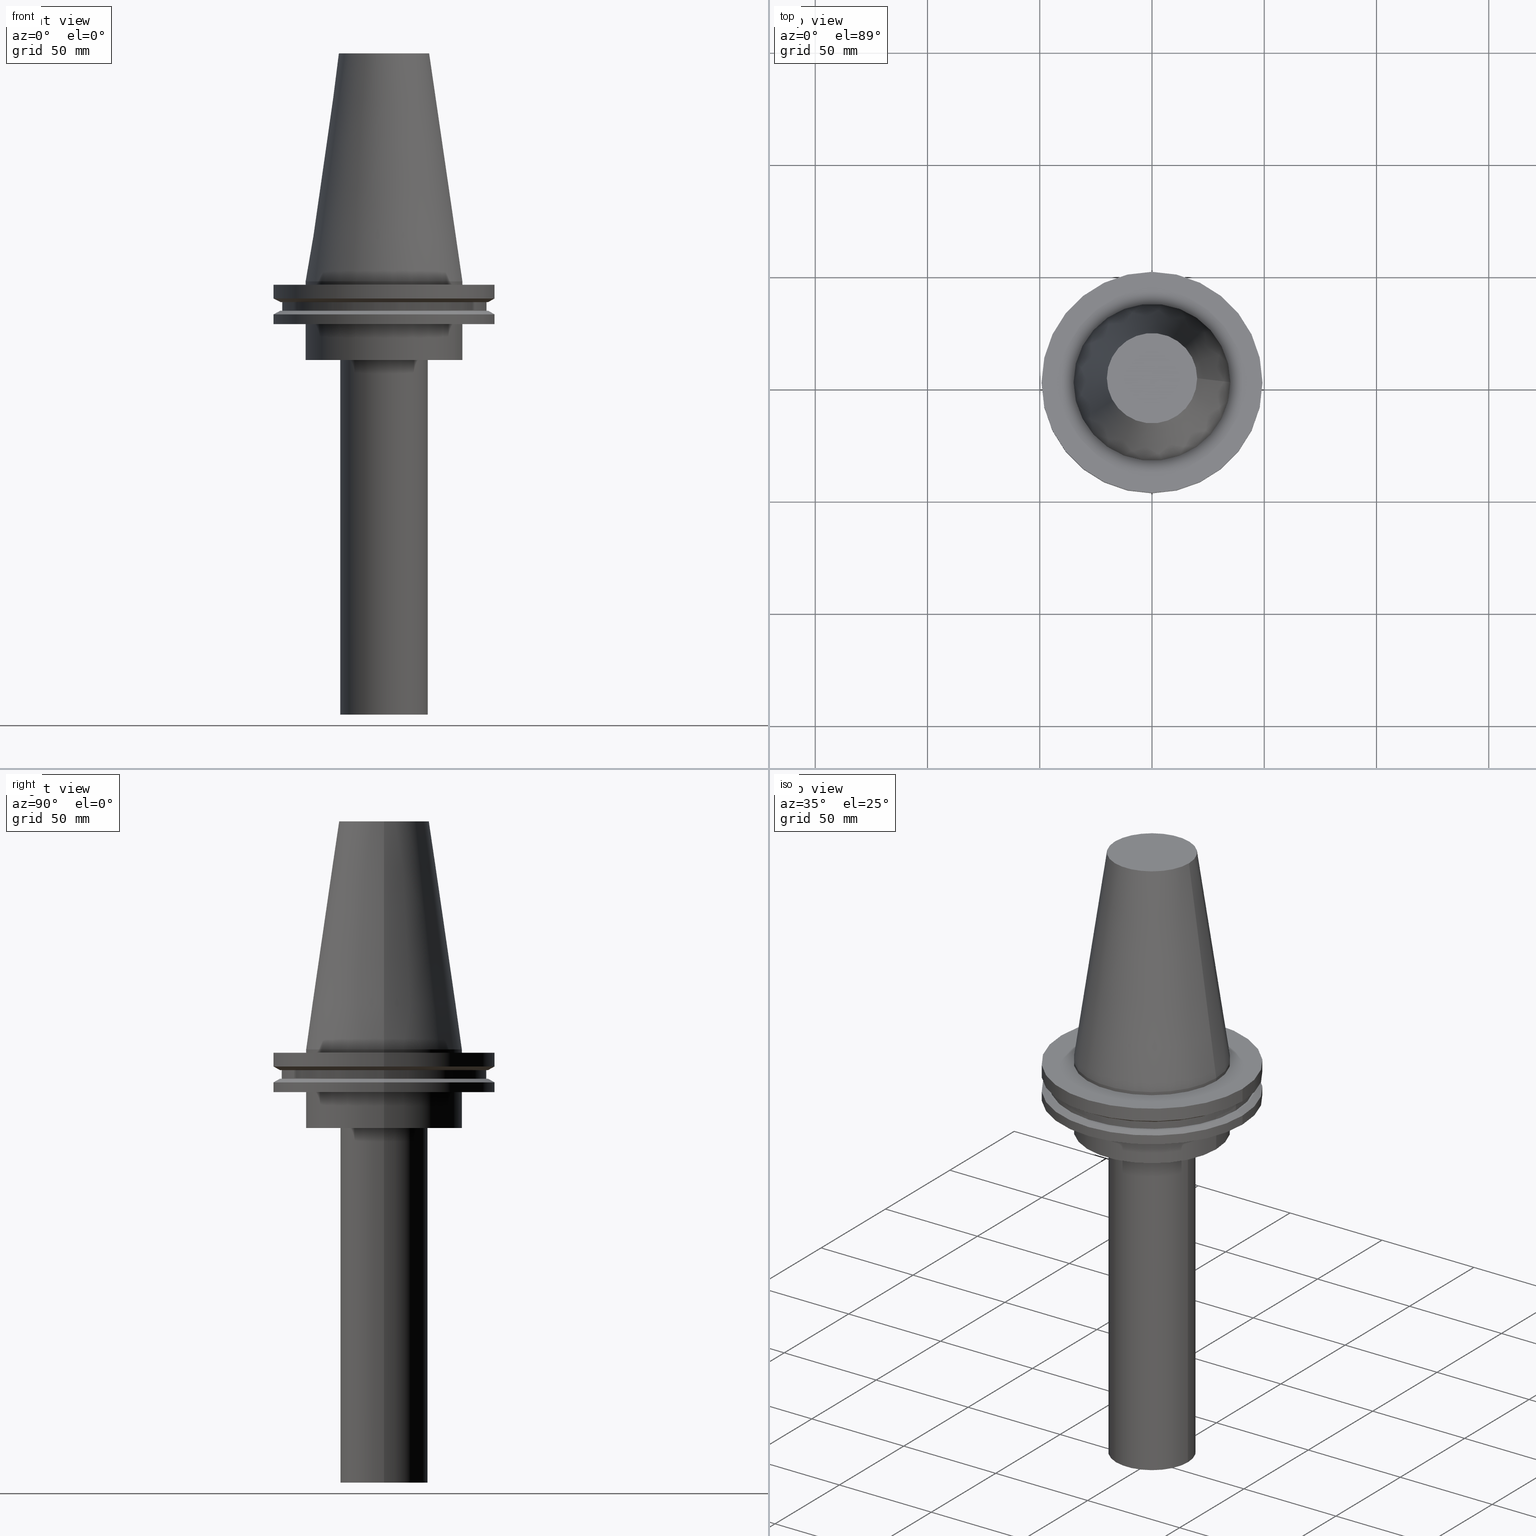
[diagram: canonical four-view strip — front | top / right | iso, engineering-drawing reading convention]
A machine part, canonical four-view strip (front | top / right | iso — engineering-drawing reading convention). The complete STEP part file that produces these views, byte-faithful:
ISO-10303-21;
HEADER;
FILE_DESCRIPTION (( 'STEP AP203' ),
    '1' );
FILE_NAME ('11.368.645.stp',
    '2022-03-09T15:20:45',
    ( '' ),
    ( '' ),
    'SwSTEP 2.0',
    'SolidWorks 2021',
    '' );
FILE_SCHEMA (( 'CONFIG_CONTROL_DESIGN' ));
ENDSEC;

DATA;
#1 = CYLINDRICAL_SURFACE ( 'NONE', #44, 49.21499999999998920 ) ;
#2 = DIRECTION ( 'NONE',  ( -0.000000000000000000, -0.000000000000000000, 1.000000000000000000 ) ) ;
#3 = EDGE_LOOP ( 'NONE', ( #315 ) ) ;
#4 = DIRECTION ( 'NONE',  ( 1.000000000000000000, 0.000000000000000000, 0.000000000000000000 ) ) ;
#5 = EDGE_LOOP ( 'NONE', ( #219 ) ) ;
#6 = DIRECTION ( 'NONE',  ( 1.000000000000000000, 0.000000000000000000, 0.000000000000000000 ) ) ;
#7 = EDGE_LOOP ( 'NONE', ( #179 ) ) ;
#8 = DIRECTION ( 'NONE',  ( 1.000000000000000000, 0.000000000000000000, 0.000000000000000000 ) ) ;
#9 = CONICAL_SURFACE ( 'NONE', #231, 46.43919780457007818, 1.047197551196575205 ) ;
#10 = ORIENTED_EDGE ( 'NONE', *, *, #215, .T. ) ;
#11 = DIRECTION ( 'NONE',  ( -1.000000000000000000, 0.000000000000000000, 0.000000000000000000 ) ) ;
#12 = AXIS2_PLACEMENT_3D ( 'NONE', #390, #301, #55 ) ;
#13 = ORIENTED_EDGE ( 'NONE', *, *, #134, .T. ) ;
#14 = CALENDAR_DATE ( 2022, 9, 3 ) ;
#15 = DIRECTION ( 'NONE',  ( -0.000000000000000000, -0.000000000000000000, 1.000000000000000000 ) ) ;
#16 = PERSON_AND_ORGANIZATION_ROLE ( 'design_owner' ) ;
#17 = PERSON_AND_ORGANIZATION ( #222, #375 ) ;
#18 = VERTEX_POINT ( 'NONE', #146 ) ;
#19 = EDGE_CURVE ( 'NONE', #177, #177, #41, .T. ) ;
#20 = APPROVAL_STATUS ( 'not_yet_approved' ) ;
#21 = AXIS2_PLACEMENT_3D ( 'NONE', #169, #287, #273 ) ;
#22 = VERTEX_POINT ( 'NONE', #291 ) ;
#23 = DIRECTION ( 'NONE',  ( 1.000000000000000000, 0.000000000000000000, 0.000000000000000000 ) ) ;
#24 = CC_DESIGN_APPROVAL ( #59, ( #302 ) ) ;
#25 = CARTESIAN_POINT ( 'NONE',  ( 0.000000000000000000, 49.21499999999999631, -1.499999999999992895 ) ) ;
#26 = CYLINDRICAL_SURFACE ( 'NONE', #338, 19.50000000000000000 ) ;
#27 = DIRECTION ( 'NONE',  ( -0.000000000000000000, -0.000000000000000000, 1.000000000000000000 ) ) ;
#28 = EDGE_CURVE ( 'NONE', #354, #354, #165, .T. ) ;
#29 = AXIS2_PLACEMENT_3D ( 'NONE', #164, #167, #11 ) ;
#30 = DIRECTION ( 'NONE',  ( -0.000000000000000000, -0.000000000000000000, 1.000000000000000000 ) ) ;
#31 = CARTESIAN_POINT ( 'NONE',  ( 0.000000000000000000, 0.000000000000000000, -1.499999999999987566 ) ) ;
#32 = CIRCLE ( 'NONE', #130, 49.21499999999998920 ) ;
#33 = CC_DESIGN_PERSON_AND_ORGANIZATION_ASSIGNMENT ( #17, #16, ( #393 ) ) ;
#34 = FACE_OUTER_BOUND ( 'NONE', #66, .T. ) ;
#35 = ORIENTED_EDGE ( 'NONE', *, *, #274, .T. ) ;
#36 = CONICAL_SURFACE ( 'NONE', #12, 49.21499999999998920, 1.047197551196554333 ) ;
#37 = EDGE_LOOP ( 'NONE', ( #193 ) ) ;
#38 = FACE_OUTER_BOUND ( 'NONE', #138, .T. ) ;
#39 = ORIENTED_EDGE ( 'NONE', *, *, #345, .F. ) ;
#40 = CARTESIAN_POINT ( 'NONE',  ( 0.000000000000000000, 0.000000000000000000, -13.05499999999999794 ) ) ;
#41 = CIRCLE ( 'NONE', #321, 46.43919780457007818 ) ;
#42 = ORIENTED_EDGE ( 'NONE', *, *, #19, .T. ) ;
#43 = CARTESIAN_POINT ( 'NONE',  ( 0.000000000000000000, 0.000000000000000000, -13.05499999999999794 ) ) ;
#44 = AXIS2_PLACEMENT_3D ( 'NONE', #240, #334, #52 ) ;
#45 = APPROVAL ( #20, 'UNSPECIFIED' ) ;
#46 = DIRECTION ( 'NONE',  ( 1.000000000000000000, 0.000000000000000000, 0.000000000000000000 ) ) ;
#47 = PERSON_AND_ORGANIZATION ( #222, #375 ) ;
#48 = CARTESIAN_POINT ( 'NONE',  ( 0.000000000000000000, 0.000000000000000000, 0.000000000000000000 ) ) ;
#49 = DIRECTION ( 'NONE',  ( -1.000000000000000000, 0.000000000000000000, -0.000000000000000000 ) ) ;
#50 = AXIS2_PLACEMENT_3D ( 'NONE', #40, #280, #6 ) ;
#51 = ADVANCED_FACE ( 'NONE', ( #380, #348 ), #255, .T. ) ;
#52 = DIRECTION ( 'NONE',  ( 1.000000000000000000, 0.000000000000000000, 0.000000000000000000 ) ) ;
#53 = CALENDAR_DATE ( 2022, 9, 3 ) ;
#54 = VERTEX_POINT ( 'NONE', #353 ) ;
#55 = DIRECTION ( 'NONE',  ( -1.000000000000000000, 0.000000000000000000, 0.000000000000000000 ) ) ;
#56 = DIRECTION ( 'NONE',  ( -0.000000000000000000, -0.000000000000000000, 1.000000000000000000 ) ) ;
#57 = AXIS2_PLACEMENT_3D ( 'NONE', #395, #30, #158 ) ;
#58 = FACE_BOUND ( 'NONE', #37, .T. ) ;
#59 = APPROVAL ( #139, 'UNSPECIFIED' ) ;
#60 = CARTESIAN_POINT ( 'NONE',  ( 0.000000000000000000, 19.50000000000000000, -193.0000000000000000 ) ) ;
#61 = DIRECTION ( 'NONE',  ( -0.000000000000000000, -0.000000000000000000, 1.000000000000000000 ) ) ;
#62 = DIRECTION ( 'NONE',  ( 1.000000000000000000, 0.000000000000000000, 0.000000000000000000 ) ) ;
#63 = AXIS2_PLACEMENT_3D ( 'NONE', #121, #233, #359 ) ;
#64 = EDGE_CURVE ( 'NONE', #202, #202, #197, .T. ) ;
#65 = AXIS2_PLACEMENT_3D ( 'NONE', #230, #292, #271 ) ;
#66 = EDGE_LOOP ( 'NONE', ( #369 ) ) ;
#67 = DIRECTION ( 'NONE',  ( 0.000000000000000000, -0.000000000000000000, 1.000000000000000000 ) ) ;
#68 = EDGE_LOOP ( 'NONE', ( #72 ) ) ;
#69 = ORIENTED_EDGE ( 'NONE', *, *, #215, .F. ) ;
#70 = DIRECTION ( 'NONE',  ( -0.000000000000000000, -0.000000000000000000, 1.000000000000000000 ) ) ;
#71 = EDGE_LOOP ( 'NONE', ( #131 ) ) ;
#72 = ORIENTED_EDGE ( 'NONE', *, *, #109, .F. ) ;
#73 = FACE_OUTER_BOUND ( 'NONE', #317, .T. ) ;
#74 = AXIS2_PLACEMENT_3D ( 'NONE', #278, #254, #100 ) ;
#75 = DIRECTION ( 'NONE',  ( -0.000000000000000000, -0.000000000000000000, 1.000000000000000000 ) ) ;
#76 = COORDINATED_UNIVERSAL_TIME_OFFSET ( 6, 0, .BEHIND. ) ;
#77 = VERTEX_POINT ( 'NONE', #389 ) ;
#78 = CARTESIAN_POINT ( 'NONE',  ( 45.64500000000000313, 0.000000000000000000, -9.204999999999991189 ) ) ;
#79 = APPROVAL_DATE_TIME ( #226, #59 ) ;
#80 = CARTESIAN_POINT ( 'NONE',  ( 45.64500000000000313, 0.000000000000000000, -13.05499999999999794 ) ) ;
#81 =( NAMED_UNIT ( * ) PLANE_ANGLE_UNIT ( ) SI_UNIT ( $, .RADIAN. ) );
#82 = AXIS2_PLACEMENT_3D ( 'NONE', #323, #67, #186 ) ;
#83 = VERTEX_POINT ( 'NONE', #295 ) ;
#84 = DESIGN_CONTEXT ( 'detailed design', #148, 'design' ) ;
#85 = PERSON_AND_ORGANIZATION_ROLE ( 'classification_officer' ) ;
#86 = CC_DESIGN_APPROVAL ( #341, ( #144 ) ) ;
#87 = CARTESIAN_POINT ( 'NONE',  ( 0.000000000000000000, 0.000000000000000000, -7.602389855251287187 ) ) ;
#88 = FACE_BOUND ( 'NONE', #195, .T. ) ;
#89 = COORDINATED_UNIVERSAL_TIME_OFFSET ( 6, 0, .BEHIND. ) ;
#90 = CYLINDRICAL_SURFACE ( 'NONE', #335, 34.92499999999999005 ) ;
#91 = ADVANCED_FACE ( 'NONE', ( #93, #126 ), #9, .T. ) ;
#92 = CYLINDRICAL_SURFACE ( 'NONE', #224, 34.92499999999999716 ) ;
#93 = FACE_OUTER_BOUND ( 'NONE', #3, .T. ) ;
#94 = CARTESIAN_POINT ( 'NONE',  ( 0.000000000000000000, 0.000000000000000000, -1.499999999999987566 ) ) ;
#95 = ORIENTED_EDGE ( 'NONE', *, *, #319, .T. ) ;
#96 = ADVANCED_FACE ( 'NONE', ( #58, #180 ), #300, .F. ) ;
#97 = DIRECTION ( 'NONE',  ( 1.000000000000000000, 0.000000000000000000, 0.000000000000000000 ) ) ;
#98 = FACE_OUTER_BOUND ( 'NONE', #376, .T. ) ;
#99 = EDGE_LOOP ( 'NONE', ( #101 ) ) ;
#100 = DIRECTION ( 'NONE',  ( -1.000000000000000000, 0.000000000000000000, -0.000000000000000000 ) ) ;
#101 = ORIENTED_EDGE ( 'NONE', *, *, #345, .T. ) ;
#102 = DIRECTION ( 'NONE',  ( 1.000000000000000000, 0.000000000000000000, 0.000000000000000000 ) ) ;
#103 = CC_DESIGN_PERSON_AND_ORGANIZATION_ASSIGNMENT ( #384, #145, ( #332 ) ) ;
#104 = ORIENTED_EDGE ( 'NONE', *, *, #373, .F. ) ;
#105 = AXIS2_PLACEMENT_3D ( 'NONE', #43, #70, #191 ) ;
#106 = ORIENTED_EDGE ( 'NONE', *, *, #261, .F. ) ;
#107 = APPLICATION_CONTEXT ( 'configuration controlled 3d designs of mechanical parts and assemblies' ) ;
#108 = CARTESIAN_POINT ( 'NONE',  ( 0.000000000000000000, 0.000000000000000000, -9.204999999999991189 ) ) ;
#109 = EDGE_CURVE ( 'NONE', #22, #22, #213, .T. ) ;
#110 = CARTESIAN_POINT ( 'NONE',  ( 0.000000000000000000, 0.000000000000000000, 101.5999999999999943 ) ) ;
#111 = ORIENTED_EDGE ( 'NONE', *, *, #64, .F. ) ;
#112 = CC_DESIGN_DATE_AND_TIME_ASSIGNMENT ( #117, #118, ( #302 ) ) ;
#113 = APPLICATION_PROTOCOL_DEFINITION ( 'international standard', 'config_control_design', 1994, #148 ) ;
#114 = FACE_OUTER_BOUND ( 'NONE', #343, .T. ) ;
#115 = CC_DESIGN_PERSON_AND_ORGANIZATION_ASSIGNMENT ( #234, #355, ( #144 ) ) ;
#116 = LOCAL_TIME ( 9, 20, 45.00000000000000000, #328 ) ;
#117 = DATE_AND_TIME ( #53, #137 ) ;
#118 = DATE_TIME_ROLE ( 'classification_date' ) ;
#119 = CIRCLE ( 'NONE', #379, 49.21500000000000341 ) ;
#120 = AXIS2_PLACEMENT_3D ( 'NONE', #318, #282, #8 ) ;
#121 = CARTESIAN_POINT ( 'NONE',  ( 0.000000000000000000, 46.43919780457007818, -9.204999999999998295 ) ) ;
#122 = VERTEX_POINT ( 'NONE', #265 ) ;
#123 = FACE_OUTER_BOUND ( 'NONE', #337, .T. ) ;
#124 = APPROVAL_PERSON_ORGANIZATION ( #361, #59, #171 ) ;
#125 = CARTESIAN_POINT ( 'NONE',  ( 0.000000000000000000, 0.000000000000000000, -14.65761014474876944 ) ) ;
#126 = FACE_BOUND ( 'NONE', #277, .T. ) ;
#127 = DIRECTION ( 'NONE',  ( 1.000000000000000000, 0.000000000000000000, 0.000000000000000000 ) ) ;
#128 = ORIENTED_EDGE ( 'NONE', *, *, #211, .T. ) ;
#129 = CYLINDRICAL_SURFACE ( 'NONE', #133, 49.21499999999999631 ) ;
#130 = AXIS2_PLACEMENT_3D ( 'NONE', #125, #212, #127 ) ;
#131 = ORIENTED_EDGE ( 'NONE', *, *, #64, .T. ) ;
#132 = EDGE_LOOP ( 'NONE', ( #313 ) ) ;
#133 = AXIS2_PLACEMENT_3D ( 'NONE', #110, #370, #102 ) ;
#134 = EDGE_CURVE ( 'NONE', #260, #260, #267, .T. ) ;
#135 = EDGE_LOOP ( 'NONE', ( #188 ) ) ;
#136 = CARTESIAN_POINT ( 'NONE',  ( 0.000000000000000000, 0.000000000000000000, -19.04999999999999716 ) ) ;
#137 = LOCAL_TIME ( 9, 20, 45.00000000000000000, #232 ) ;
#138 = EDGE_LOOP ( 'NONE', ( #163 ) ) ;
#139 = APPROVAL_STATUS ( 'not_yet_approved' ) ;
#140 = CARTESIAN_POINT ( 'NONE',  ( 0.000000000000000000, 0.000000000000000000, -9.204999999999991189 ) ) ;
#141 = VERTEX_POINT ( 'NONE', #256 ) ;
#142 = APPROVAL_ROLE ( '' ) ;
#143 = VERTEX_POINT ( 'NONE', #149 ) ;
#144 = PRODUCT_DEFINITION_FORMATION_WITH_SPECIFIED_SOURCE ( 'ANY', '', #393, .NOT_KNOWN. ) ;
#145 = PERSON_AND_ORGANIZATION_ROLE ( 'creator' ) ;
#146 = CARTESIAN_POINT ( 'NONE',  ( 34.92499999999999716, 0.000000000000000000, -35.00000000000000000 ) ) ;
#147 = DATE_TIME_ROLE ( 'creation_date' ) ;
#148 = APPLICATION_CONTEXT ( 'configuration controlled 3d designs of mechanical parts and assemblies' ) ;
#149 = CARTESIAN_POINT ( 'NONE',  ( 49.21499999999999631, 0.000000000000000000, -1.499999999999987566 ) ) ;
#150 = AXIS2_PLACEMENT_3D ( 'NONE', #60, #235, #308 ) ;
#151 = APPROVAL_STATUS ( 'not_yet_approved' ) ;
#152 = AXIS2_PLACEMENT_3D ( 'NONE', #205, #209, #293 ) ;
#153 = DIRECTION ( 'NONE',  ( 1.000000000000000000, 0.000000000000000000, 0.000000000000000000 ) ) ;
#154 = DIRECTION ( 'NONE',  ( 1.000000000000000000, 0.000000000000000000, 0.000000000000000000 ) ) ;
#155 = CARTESIAN_POINT ( 'NONE',  ( 0.000000000000000000, 0.000000000000000000, -193.0000000000000000 ) ) ;
#156 = ADVANCED_FACE ( 'NONE', ( #73, #162 ), #372, .F. ) ;
#157 = AXIS2_PLACEMENT_3D ( 'NONE', #48, #203, #289 ) ;
#158 = DIRECTION ( 'NONE',  ( 1.000000000000000000, 0.000000000000000000, 0.000000000000000000 ) ) ;
#159 = ORIENTED_EDGE ( 'NONE', *, *, #290, .T. ) ;
#160 = MANIFOLD_SOLID_BREP ( 'CKB', #347 ) ;
#161 = EDGE_LOOP ( 'NONE', ( #322 ) ) ;
#162 = FACE_BOUND ( 'NONE', #374, .T. ) ;
#163 = ORIENTED_EDGE ( 'NONE', *, *, #290, .F. ) ;
#164 = CARTESIAN_POINT ( 'NONE',  ( 0.000000000000000000, 0.000000000000000000, 0.000000000000000000 ) ) ;
#165 = CIRCLE ( 'NONE', #387, 45.64500000000000313 ) ;
#166 = ORIENTED_EDGE ( 'NONE', *, *, #253, .T. ) ;
#167 = DIRECTION ( 'NONE',  ( 0.000000000000000000, 0.000000000000000000, -1.000000000000000000 ) ) ;
#168 = CIRCLE ( 'NONE', #65, 49.21499999999998920 ) ;
#169 = CARTESIAN_POINT ( 'NONE',  ( 0.000000000000000000, 0.000000000000000000, -35.00000000000000000 ) ) ;
#170 = VERTEX_POINT ( 'NONE', #330 ) ;
#171 = APPROVAL_ROLE ( '' ) ;
#172 = ADVANCED_FACE ( 'NONE', ( #196 ), #247, .F. ) ;
#173 = CARTESIAN_POINT ( 'NONE',  ( 19.50000000000000000, 0.000000000000000000, -35.00000000000000000 ) ) ;
#174 = FACE_OUTER_BOUND ( 'NONE', #246, .T. ) ;
#175 = SHAPE_DEFINITION_REPRESENTATION ( #350, #307 ) ;
#176 = ADVANCED_FACE ( 'NONE', ( #216, #34 ), #340, .F. ) ;
#177 = VERTEX_POINT ( 'NONE', #296 ) ;
#178 = CIRCLE ( 'NONE', #50, 45.64500000000000313 ) ;
#179 = ORIENTED_EDGE ( 'NONE', *, *, #28, .F. ) ;
#180 = FACE_OUTER_BOUND ( 'NONE', #252, .T. ) ;
#181 = AXIS2_PLACEMENT_3D ( 'NONE', #155, #61, #309 ) ;
#182 = CARTESIAN_POINT ( 'NONE',  ( 0.000000000000000000, 0.000000000000000000, 101.5999999999999943 ) ) ;
#183 = CIRCLE ( 'NONE', #57, 20.10819343178871321 ) ;
#184 = EDGE_CURVE ( 'NONE', #382, #382, #178, .T. ) ;
#185 = EDGE_LOOP ( 'NONE', ( #342 ) ) ;
#186 = DIRECTION ( 'NONE',  ( 1.000000000000000000, 0.000000000000000000, 0.000000000000000000 ) ) ;
#187 = CIRCLE ( 'NONE', #386, 49.21499999999999631 ) ;
#188 = ORIENTED_EDGE ( 'NONE', *, *, #261, .T. ) ;
#189 = CARTESIAN_POINT ( 'NONE',  ( 0.000000000000000000, 0.000000000000000000, -35.00000000000000000 ) ) ;
#190 = EDGE_LOOP ( 'NONE', ( #39 ) ) ;
#191 = DIRECTION ( 'NONE',  ( 1.000000000000000000, 0.000000000000000000, 0.000000000000000000 ) ) ;
#192 =( GEOMETRIC_REPRESENTATION_CONTEXT ( 3 ) GLOBAL_UNCERTAINTY_ASSIGNED_CONTEXT ( ( #245 ) ) GLOBAL_UNIT_ASSIGNED_CONTEXT ( ( #201, #81, #294 ) ) REPRESENTATION_CONTEXT ( 'NONE', 'WORKASPACE' ) );
#193 = ORIENTED_EDGE ( 'NONE', *, *, #134, .F. ) ;
#194 = CC_DESIGN_PERSON_AND_ORGANIZATION_ASSIGNMENT ( #381, #85, ( #302 ) ) ;
#195 = EDGE_LOOP ( 'NONE', ( #279 ) ) ;
#196 = FACE_OUTER_BOUND ( 'NONE', #99, .T. ) ;
#197 = CIRCLE ( 'NONE', #21, 19.50000000000000000 ) ;
#198 = DIRECTION ( 'NONE',  ( 1.000000000000000000, 0.000000000000000000, 0.000000000000000000 ) ) ;
#199 = LOCAL_TIME ( 9, 20, 45.00000000000000000, #329 ) ;
#200 = DATE_AND_TIME ( #14, #116 ) ;
#201 =( LENGTH_UNIT ( ) NAMED_UNIT ( * ) SI_UNIT ( .MILLI., .METRE. ) );
#202 = VERTEX_POINT ( 'NONE', #173 ) ;
#203 = DIRECTION ( 'NONE',  ( -0.000000000000000000, -0.000000000000000000, 1.000000000000000000 ) ) ;
#204 = VERTEX_POINT ( 'NONE', #311 ) ;
#205 = CARTESIAN_POINT ( 'NONE',  ( 0.000000000000000000, 0.000000000000000000, 0.000000000000000000 ) ) ;
#206 = APPLICATION_PROTOCOL_DEFINITION ( 'international standard', 'config_control_design', 1994, #107 ) ;
#207 = CARTESIAN_POINT ( 'NONE',  ( 0.000000000000000000, 45.64500000000000313, -13.05499999999999794 ) ) ;
#208 = PRODUCT_RELATED_PRODUCT_CATEGORY ( 'detail', '', ( #393 ) ) ;
#209 = DIRECTION ( 'NONE',  ( 0.000000000000000000, 0.000000000000000000, 1.000000000000000000 ) ) ;
#210 = CARTESIAN_POINT ( 'NONE',  ( 0.000000000000000000, 0.000000000000000000, -9.204999999999991189 ) ) ;
#211 = EDGE_CURVE ( 'NONE', #204, #204, #281, .T. ) ;
#212 = DIRECTION ( 'NONE',  ( -0.000000000000000000, -0.000000000000000000, 1.000000000000000000 ) ) ;
#213 = CIRCLE ( 'NONE', #181, 19.50000000000000000 ) ;
#214 = FACE_OUTER_BOUND ( 'NONE', #185, .T. ) ;
#215 = EDGE_CURVE ( 'NONE', #170, #170, #297, .T. ) ;
#216 = FACE_BOUND ( 'NONE', #71, .T. ) ;
#217 = EDGE_LOOP ( 'NONE', ( #35 ) ) ;
#218 = FACE_OUTER_BOUND ( 'NONE', #135, .T. ) ;
#219 = ORIENTED_EDGE ( 'NONE', *, *, #373, .T. ) ;
#220 = EDGE_LOOP ( 'NONE', ( #95 ) ) ;
#221 = DIRECTION ( 'NONE',  ( -0.000000000000000000, -0.000000000000000000, 1.000000000000000000 ) ) ;
#222 = PERSON ( 'UNSPECIFIED', 'UNSPECIFIED', 'UNSPECIFIED', ('UNSPECIFIED'), ('UNSPECIFIED'), ('UNSPECIFIED') ) ;
#223 = PERSON_AND_ORGANIZATION ( #222, #375 ) ;
#224 = AXIS2_PLACEMENT_3D ( 'NONE', #182, #27, #154 ) ;
#225 = PLANE ( 'NONE',  #259 ) ;
#226 = DATE_AND_TIME ( #288, #199 ) ;
#227 = FACE_OUTER_BOUND ( 'NONE', #161, .T. ) ;
#228 = SECURITY_CLASSIFICATION_LEVEL ( 'unclassified' ) ;
#229 = DIRECTION ( 'NONE',  ( -0.000000000000000000, -0.000000000000000000, 1.000000000000000000 ) ) ;
#230 = CARTESIAN_POINT ( 'NONE',  ( 0.000000000000000000, 0.000000000000000000, -19.04999999999999716 ) ) ;
#231 = AXIS2_PLACEMENT_3D ( 'NONE', #210, #56, #97 ) ;
#232 = COORDINATED_UNIVERSAL_TIME_OFFSET ( 6, 0, .BEHIND. ) ;
#233 = DIRECTION ( 'NONE',  ( 0.000000000000000000, -0.000000000000000000, 1.000000000000000000 ) ) ;
#234 = PERSON_AND_ORGANIZATION ( #222, #375 ) ;
#235 = DIRECTION ( 'NONE',  ( 0.000000000000000000, -0.000000000000000000, 1.000000000000000000 ) ) ;
#236 = FACE_OUTER_BOUND ( 'NONE', #377, .T. ) ;
#237 = ADVANCED_FACE ( 'NONE', ( #316, #218 ), #327, .T. ) ;
#238 = FACE_OUTER_BOUND ( 'NONE', #339, .T. ) ;
#239 = CC_DESIGN_PERSON_AND_ORGANIZATION_ASSIGNMENT ( #47, #264, ( #144 ) ) ;
#240 = CARTESIAN_POINT ( 'NONE',  ( 0.000000000000000000, 0.000000000000000000, 101.5999999999999943 ) ) ;
#241 = ADVANCED_FACE ( 'NONE', ( #38, #251 ), #129, .T. ) ;
#242 = DIRECTION ( 'NONE',  ( 1.000000000000000000, 0.000000000000000000, 0.000000000000000000 ) ) ;
#243 = AXIS2_PLACEMENT_3D ( 'NONE', #31, #2, #242 ) ;
#244 = CC_DESIGN_SECURITY_CLASSIFICATION ( #302, ( #144 ) ) ;
#245 = UNCERTAINTY_MEASURE_WITH_UNIT (LENGTH_MEASURE( 1.000000000000000082E-05 ), #201, 'distance_accuracy_value', 'NONE');
#246 = EDGE_LOOP ( 'NONE', ( #250 ) ) ;
#247 = PLANE ( 'NONE',  #74 ) ;
#248 = AXIS2_PLACEMENT_3D ( 'NONE', #25, #336, #365 ) ;
#249 = ORIENTED_EDGE ( 'NONE', *, *, #28, .T. ) ;
#250 = ORIENTED_EDGE ( 'NONE', *, *, #109, .T. ) ;
#251 = FACE_OUTER_BOUND ( 'NONE', #217, .T. ) ;
#252 = EDGE_LOOP ( 'NONE', ( #159 ) ) ;
#253 = EDGE_CURVE ( 'NONE', #18, #18, #306, .T. ) ;
#254 = DIRECTION ( 'NONE',  ( 0.000000000000000000, 0.000000000000000000, -1.000000000000000000 ) ) ;
#255 = CYLINDRICAL_SURFACE ( 'NONE', #367, 45.64500000000000313 ) ;
#256 = CARTESIAN_POINT ( 'NONE',  ( 49.21500000000000341, 0.000000000000000000, -7.602389855251287187 ) ) ;
#257 = PERSON_AND_ORGANIZATION ( #222, #375 ) ;
#258 = FACE_BOUND ( 'NONE', #346, .T. ) ;
#259 = AXIS2_PLACEMENT_3D ( 'NONE', #207, #331, #49 ) ;
#260 = VERTEX_POINT ( 'NONE', #268 ) ;
#261 = EDGE_CURVE ( 'NONE', #83, #83, #320, .T. ) ;
#262 = APPROVAL_DATE_TIME ( #286, #45 ) ;
#263 = CARTESIAN_POINT ( 'NONE',  ( 0.000000000000000000, 0.000000000000000000, 0.000000000000000000 ) ) ;
#264 = PERSON_AND_ORGANIZATION_ROLE ( 'creator' ) ;
#265 = CARTESIAN_POINT ( 'NONE',  ( 49.21499999999998920, 0.000000000000000000, -14.65761014474876944 ) ) ;
#266 = FACE_BOUND ( 'NONE', #371, .T. ) ;
#267 = CIRCLE ( 'NONE', #243, 34.92499999999999005 ) ;
#268 = CARTESIAN_POINT ( 'NONE',  ( 34.92499999999999005, 0.000000000000000000, -1.499999999999987566 ) ) ;
#269 = DIRECTION ( 'NONE',  ( 1.000000000000000000, 0.000000000000000000, 0.000000000000000000 ) ) ;
#270 = ADVANCED_FACE ( 'NONE', ( #227, #258 ), #388, .F. ) ;
#271 = DIRECTION ( 'NONE',  ( 1.000000000000000000, 0.000000000000000000, 0.000000000000000000 ) ) ;
#272 = AXIS2_PLACEMENT_3D ( 'NONE', #136, #276, #4 ) ;
#273 = DIRECTION ( 'NONE',  ( 1.000000000000000000, 0.000000000000000000, 0.000000000000000000 ) ) ;
#274 = EDGE_CURVE ( 'NONE', #141, #141, #119, .T. ) ;
#275 = FACE_OUTER_BOUND ( 'NONE', #5, .T. ) ;
#276 = DIRECTION ( 'NONE',  ( -0.000000000000000000, -0.000000000000000000, 1.000000000000000000 ) ) ;
#277 = EDGE_LOOP ( 'NONE', ( #42 ) ) ;
#278 = CARTESIAN_POINT ( 'NONE',  ( 0.000000000000000000, 20.10819343178871321, 101.5999999999999943 ) ) ;
#279 = ORIENTED_EDGE ( 'NONE', *, *, #184, .F. ) ;
#280 = DIRECTION ( 'NONE',  ( -0.000000000000000000, -0.000000000000000000, 1.000000000000000000 ) ) ;
#281 = CIRCLE ( 'NONE', #272, 34.92499999999999716 ) ;
#282 = DIRECTION ( 'NONE',  ( 0.000000000000000000, -0.000000000000000000, 1.000000000000000000 ) ) ;
#283 = ADVANCED_FACE ( 'NONE', ( #304 ), #366, .F. ) ;
#284 = EDGE_LOOP ( 'NONE', ( #344 ) ) ;
#285 = APPROVAL_PERSON_ORGANIZATION ( #257, #341, #349 ) ;
#286 = DATE_AND_TIME ( #333, #314 ) ;
#287 = DIRECTION ( 'NONE',  ( -0.000000000000000000, -0.000000000000000000, 1.000000000000000000 ) ) ;
#288 = CALENDAR_DATE ( 2022, 9, 3 ) ;
#289 = DIRECTION ( 'NONE',  ( 1.000000000000000000, 0.000000000000000000, 0.000000000000000000 ) ) ;
#290 = EDGE_CURVE ( 'NONE', #143, #143, #187, .T. ) ;
#291 = CARTESIAN_POINT ( 'NONE',  ( 19.50000000000000000, 0.000000000000000000, -193.0000000000000000 ) ) ;
#292 = DIRECTION ( 'NONE',  ( -0.000000000000000000, -0.000000000000000000, 1.000000000000000000 ) ) ;
#293 = DIRECTION ( 'NONE',  ( 1.000000000000000000, 0.000000000000000000, 0.000000000000000000 ) ) ;
#294 =( NAMED_UNIT ( * ) SI_UNIT ( $, .STERADIAN. ) SOLID_ANGLE_UNIT ( ) );
#295 = CARTESIAN_POINT ( 'NONE',  ( 34.92499999999999005, 0.000000000000000000, 0.000000000000000000 ) ) ;
#296 = CARTESIAN_POINT ( 'NONE',  ( 46.43919780457007818, 0.000000000000000000, -9.204999999999991189 ) ) ;
#297 = CIRCLE ( 'NONE', #105, 46.43919780457007818 ) ;
#298 = CC_DESIGN_DATE_AND_TIME_ASSIGNMENT ( #200, #147, ( #332 ) ) ;
#299 = CARTESIAN_POINT ( 'NONE',  ( 0.000000000000000000, 0.000000000000000000, 101.5999999999999943 ) ) ;
#300 = PLANE ( 'NONE',  #248 ) ;
#301 = DIRECTION ( 'NONE',  ( 0.000000000000000000, 0.000000000000000000, -1.000000000000000000 ) ) ;
#302 = SECURITY_CLASSIFICATION ( '', '', #228 ) ;
#303 = DIRECTION ( 'NONE',  ( -0.000000000000000000, -0.000000000000000000, 1.000000000000000000 ) ) ;
#304 = FACE_OUTER_BOUND ( 'NONE', #68, .T. ) ;
#305 = ADVANCED_FACE ( 'NONE', ( #238, #98 ), #90, .T. ) ;
#306 = CIRCLE ( 'NONE', #358, 34.92499999999999716 ) ;
#307 = ADVANCED_BREP_SHAPE_REPRESENTATION ( '11.368.645', ( #160, #152 ), #192 ) ;
#308 = DIRECTION ( 'NONE',  ( 1.000000000000000000, 0.000000000000000000, 0.000000000000000000 ) ) ;
#309 = DIRECTION ( 'NONE',  ( 1.000000000000000000, 0.000000000000000000, 0.000000000000000000 ) ) ;
#310 = DIRECTION ( 'NONE',  ( 1.000000000000000000, 0.000000000000000000, 0.000000000000000000 ) ) ;
#311 = CARTESIAN_POINT ( 'NONE',  ( 34.92499999999999716, 0.000000000000000000, -19.04999999999999716 ) ) ;
#312 = ADVANCED_FACE ( 'NONE', ( #394, #236 ), #92, .T. ) ;
#313 = ORIENTED_EDGE ( 'NONE', *, *, #211, .F. ) ;
#314 = LOCAL_TIME ( 9, 20, 45.00000000000000000, #89 ) ;
#315 = ORIENTED_EDGE ( 'NONE', *, *, #274, .F. ) ;
#316 = FACE_BOUND ( 'NONE', #190, .T. ) ;
#317 = EDGE_LOOP ( 'NONE', ( #104 ) ) ;
#318 = CARTESIAN_POINT ( 'NONE',  ( 0.000000000000000000, 49.21499999999998920, -19.04999999999999716 ) ) ;
#319 = EDGE_CURVE ( 'NONE', #122, #122, #32, .T. ) ;
#320 = CIRCLE ( 'NONE', #157, 34.92499999999999005 ) ;
#321 = AXIS2_PLACEMENT_3D ( 'NONE', #108, #221, #310 ) ;
#322 = ORIENTED_EDGE ( 'NONE', *, *, #19, .F. ) ;
#323 = CARTESIAN_POINT ( 'NONE',  ( 0.000000000000000000, 34.92499999999999716, -35.00000000000000000 ) ) ;
#324 = CARTESIAN_POINT ( 'NONE',  ( 0.000000000000000000, 0.000000000000000000, 101.5999999999999943 ) ) ;
#325 = LOCAL_TIME ( 9, 20, 45.00000000000000000, #76 ) ;
#326 = CALENDAR_DATE ( 2022, 9, 3 ) ;
#327 = CONICAL_SURFACE ( 'NONE', #29, 34.92499999999999005, 0.1448138465474119452 ) ;
#328 = COORDINATED_UNIVERSAL_TIME_OFFSET ( 6, 0, .BEHIND. ) ;
#329 = COORDINATED_UNIVERSAL_TIME_OFFSET ( 6, 0, .BEHIND. ) ;
#330 = CARTESIAN_POINT ( 'NONE',  ( 46.43919780457007818, 0.000000000000000000, -13.05499999999999794 ) ) ;
#331 = DIRECTION ( 'NONE',  ( 0.000000000000000000, 0.000000000000000000, -1.000000000000000000 ) ) ;
#332 = PRODUCT_DEFINITION ( 'UNKNOWN', '', #144, #84 ) ;
#333 = CALENDAR_DATE ( 2022, 9, 3 ) ;
#334 = DIRECTION ( 'NONE',  ( -0.000000000000000000, -0.000000000000000000, 1.000000000000000000 ) ) ;
#335 = AXIS2_PLACEMENT_3D ( 'NONE', #299, #364, #269 ) ;
#336 = DIRECTION ( 'NONE',  ( 0.000000000000000000, 0.000000000000000000, -1.000000000000000000 ) ) ;
#337 = EDGE_LOOP ( 'NONE', ( #111 ) ) ;
#338 = AXIS2_PLACEMENT_3D ( 'NONE', #263, #360, #153 ) ;
#339 = EDGE_LOOP ( 'NONE', ( #106 ) ) ;
#340 = PLANE ( 'NONE',  #82 ) ;
#341 = APPROVAL ( #151, 'UNSPECIFIED' ) ;
#342 = ORIENTED_EDGE ( 'NONE', *, *, #319, .F. ) ;
#343 = EDGE_LOOP ( 'NONE', ( #10 ) ) ;
#344 = ORIENTED_EDGE ( 'NONE', *, *, #184, .T. ) ;
#345 = EDGE_CURVE ( 'NONE', #77, #77, #183, .T. ) ;
#346 = EDGE_LOOP ( 'NONE', ( #249 ) ) ;
#347 = CLOSED_SHELL ( 'NONE', ( #237, #172, #176, #312, #156, #356, #363, #385, #51, #270, #91, #241, #96, #305, #368, #283 ) ) ;
#348 = FACE_OUTER_BOUND ( 'NONE', #284, .T. ) ;
#349 = APPROVAL_ROLE ( '' ) ;
#350 = PRODUCT_DEFINITION_SHAPE ( 'NONE', 'NONE',  #332 ) ;
#351 = APPROVAL_PERSON_ORGANIZATION ( #223, #45, #142 ) ;
#352 = DIRECTION ( 'NONE',  ( 1.000000000000000000, 0.000000000000000000, 0.000000000000000000 ) ) ;
#353 = CARTESIAN_POINT ( 'NONE',  ( 49.21499999999998920, 0.000000000000000000, -19.04999999999999716 ) ) ;
#354 = VERTEX_POINT ( 'NONE', #78 ) ;
#355 = PERSON_AND_ORGANIZATION_ROLE ( 'design_supplier' ) ;
#356 = ADVANCED_FACE ( 'NONE', ( #214, #275 ), #1, .T. ) ;
#357 = FACE_OUTER_BOUND ( 'NONE', #220, .T. ) ;
#358 = AXIS2_PLACEMENT_3D ( 'NONE', #189, #229, #352 ) ;
#359 = DIRECTION ( 'NONE',  ( 1.000000000000000000, 0.000000000000000000, 0.000000000000000000 ) ) ;
#360 = DIRECTION ( 'NONE',  ( -0.000000000000000000, -0.000000000000000000, 1.000000000000000000 ) ) ;
#361 = PERSON_AND_ORGANIZATION ( #222, #375 ) ;
#362 = DIRECTION ( 'NONE',  ( -0.000000000000000000, -0.000000000000000000, 1.000000000000000000 ) ) ;
#363 = ADVANCED_FACE ( 'NONE', ( #266, #357 ), #36, .T. ) ;
#364 = DIRECTION ( 'NONE',  ( -0.000000000000000000, -0.000000000000000000, 1.000000000000000000 ) ) ;
#365 = DIRECTION ( 'NONE',  ( -1.000000000000000000, 0.000000000000000000, -0.000000000000000000 ) ) ;
#366 = PLANE ( 'NONE',  #150 ) ;
#367 = AXIS2_PLACEMENT_3D ( 'NONE', #324, #75, #46 ) ;
#368 = ADVANCED_FACE ( 'NONE', ( #123, #174 ), #26, .T. ) ;
#369 = ORIENTED_EDGE ( 'NONE', *, *, #253, .F. ) ;
#370 = DIRECTION ( 'NONE',  ( -0.000000000000000000, -0.000000000000000000, 1.000000000000000000 ) ) ;
#371 = EDGE_LOOP ( 'NONE', ( #69 ) ) ;
#372 = PLANE ( 'NONE',  #120 ) ;
#373 = EDGE_CURVE ( 'NONE', #54, #54, #168, .T. ) ;
#374 = EDGE_LOOP ( 'NONE', ( #128 ) ) ;
#375 = ORGANIZATION ( 'UNSPECIFIED', 'UNSPECIFIED', '' ) ;
#376 = EDGE_LOOP ( 'NONE', ( #13 ) ) ;
#377 = EDGE_LOOP ( 'NONE', ( #166 ) ) ;
#378 = MECHANICAL_CONTEXT ( 'NONE', #107, 'mechanical' ) ;
#379 = AXIS2_PLACEMENT_3D ( 'NONE', #87, #303, #62 ) ;
#380 = FACE_OUTER_BOUND ( 'NONE', #7, .T. ) ;
#381 = PERSON_AND_ORGANIZATION ( #222, #375 ) ;
#382 = VERTEX_POINT ( 'NONE', #80 ) ;
#383 = DATE_AND_TIME ( #326, #325 ) ;
#384 = PERSON_AND_ORGANIZATION ( #222, #375 ) ;
#385 = ADVANCED_FACE ( 'NONE', ( #88, #114 ), #225, .F. ) ;
#386 = AXIS2_PLACEMENT_3D ( 'NONE', #94, #362, #23 ) ;
#387 = AXIS2_PLACEMENT_3D ( 'NONE', #140, #15, #198 ) ;
#388 = PLANE ( 'NONE',  #63 ) ;
#389 = CARTESIAN_POINT ( 'NONE',  ( 20.10819343178871321, 0.000000000000000000, 101.5999999999999801 ) ) ;
#390 = CARTESIAN_POINT ( 'NONE',  ( 0.000000000000000000, 0.000000000000000000, -14.65761014474876944 ) ) ;
#391 = APPROVAL_DATE_TIME ( #383, #341 ) ;
#392 = CC_DESIGN_APPROVAL ( #45, ( #332 ) ) ;
#393 = PRODUCT ( '11.368.645', '11.368.645', '', ( #378 ) ) ;
#394 = FACE_OUTER_BOUND ( 'NONE', #132, .T. ) ;
#395 = CARTESIAN_POINT ( 'NONE',  ( 0.000000000000000000, 0.000000000000000000, 101.5999999999999801 ) ) ;
ENDSEC;
END-ISO-10303-21;
